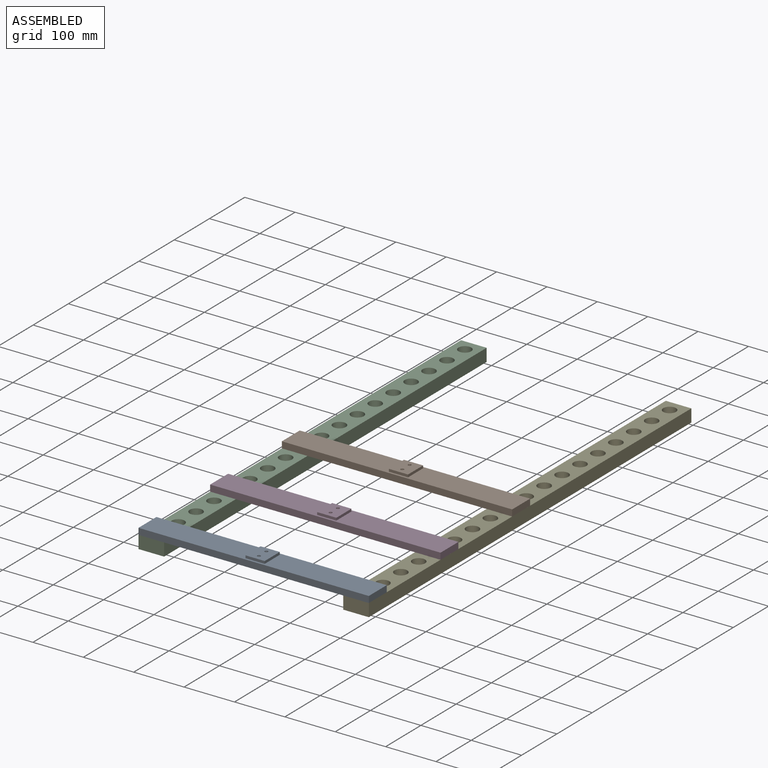
[diagram: assembled view]
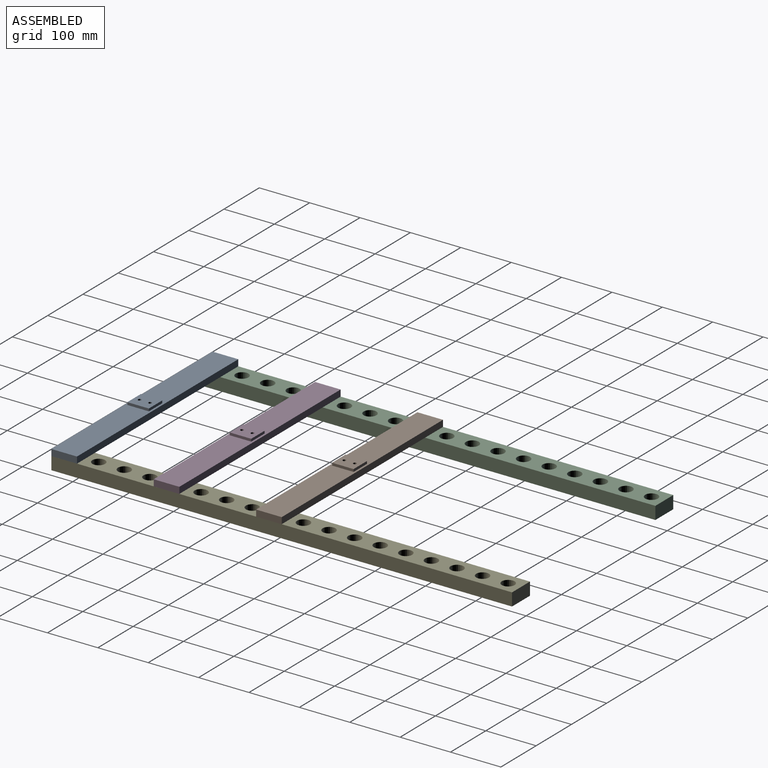
[diagram: assembled view, second angle]
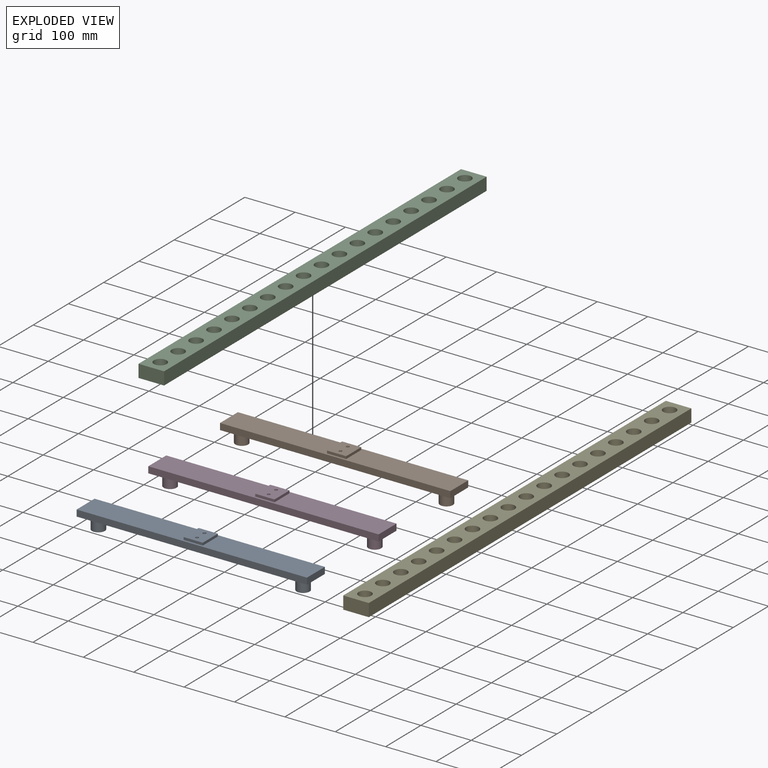
[diagram: exploded view]
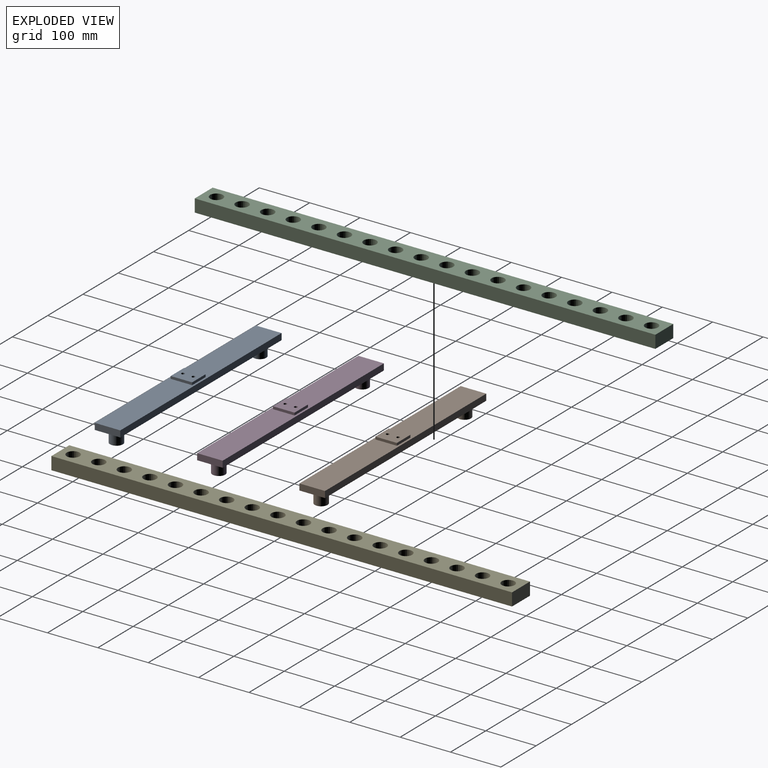
[diagram: exploded view, second angle]
ASSEMBLY  parts=5 mates=8
PART A: 19 faces, bbox 457.2x50.8x43.2 mm
  f0: plane 457.2x50.8mm, normal (0,0,-1), area 21600mm2, adj f1,f2,f3,f4,f10,f11,f12,f14
  f1: plane 50.8x12.7mm, normal (1,0,0), area 645.2mm2, adj f0,f2,f4,f5
  f2: plane 457.2x12.7mm, normal (0,1,0), area 5806.4mm2, adj f0,f1,f3,f5
  f3: plane 50.8x12.7mm, normal (-1,0,0), area 645.2mm2, adj f0,f2,f4,f5
  f4: plane 457.2x12.7mm, normal (0,-1,0), area 5806.4mm2, adj f0,f1,f3,f5
  f5: plane 457.2x50.8mm, normal (0,0,1), area 22212.3mm2, adj f1,f2,f3,f4,f6,f8
  f6: cylinder r=12.7mm len=25.4mm, axis (0,0,-1), area 2026.8mm2, adj f5,f7
  f7: plane 25.4x25.4mm, normal (0,0,1), area 506.7mm2, adj f6
  f8: cylinder r=12.7mm len=25.4mm, axis (0,0,-1), area 2026.8mm2, adj f5,f9
  f9: plane 25.4x25.4mm, normal (0,0,1), area 506.7mm2, adj f8
  f10: plane 42.67x5.08mm, normal (1,0,0), area 216.8mm2, adj f0,f11,f14,f16
  f11: plane 38.1x5.08mm, normal (0,-1,0), area 193.5mm2, adj f0,f10,f12,f16
  f12: plane 42.67x5.08mm, normal (-1,0,0), area 216.8mm2, adj f0,f11,f14,f16
  f13: cylinder r=3.17mm len=6.35mm, axis (0,0,1), area 101.3mm2, adj f16,f17
  f14: plane 38.1x5.08mm, normal (0,1,0), area 193.5mm2, adj f0,f10,f12,f16
  f15: cylinder r=3.17mm len=6.35mm, axis (0,0,1), area 101.3mm2, adj f16,f18
  f16: plane 42.67x38.1mm, normal (0,0,-1), area 1562.5mm2, adj f10,f11,f12,f13,f14,f15
  f17: plane 6.35x6.35mm, normal (0,0,-1), area 31.7mm2, adj f13
  f18: plane 6.35x6.35mm, normal (0,0,-1), area 31.7mm2, adj f15
PART B: same geometry as A
PART C: 24 faces, bbox 50.8x914.4x25.4 mm
  f0: plane 50.8x25.4mm, normal (0,-1,0), area 1290.3mm2, adj f1,f21,f22,f23
  f1: plane 914.4x25.4mm, normal (1,0,0), area 23225.8mm2, adj f0,f2,f22,f23
  f2: plane 50.8x25.4mm, normal (0,1,0), area 1290.3mm2, adj f1,f21,f22,f23
  f3: cylinder r=12.7mm len=25.4mm, axis (0,0,-1), area 2026.8mm2, adj f22,f23
  f4: cylinder r=12.7mm len=25.4mm, axis (0,0,-1), area 2026.8mm2, adj f22,f23
  f5: cylinder r=12.7mm len=25.4mm, axis (0,0,-1), area 2026.8mm2, adj f22,f23
  f6: cylinder r=12.7mm len=25.4mm, axis (0,0,-1), area 2026.8mm2, adj f22,f23
  f7: cylinder r=12.7mm len=25.4mm, axis (0,0,-1), area 2026.8mm2, adj f22,f23
  f8: cylinder r=12.7mm len=25.4mm, axis (0,0,-1), area 2026.8mm2, adj f22,f23
  f9: cylinder r=12.7mm len=25.4mm, axis (0,0,-1), area 2026.8mm2, adj f22,f23
  f10: cylinder r=12.7mm len=25.4mm, axis (0,0,-1), area 2026.8mm2, adj f22,f23
  f11: cylinder r=12.7mm len=25.4mm, axis (0,0,-1), area 2026.8mm2, adj f22,f23
  f12: cylinder r=12.7mm len=25.4mm, axis (0,0,-1), area 2026.8mm2, adj f22,f23
  f13: cylinder r=12.7mm len=25.4mm, axis (0,0,-1), area 2026.8mm2, adj f22,f23
  f14: cylinder r=12.7mm len=25.4mm, axis (0,0,-1), area 2026.8mm2, adj f22,f23
  f15: cylinder r=12.7mm len=25.4mm, axis (0,0,-1), area 2026.8mm2, adj f22,f23
  f16: cylinder r=12.7mm len=25.4mm, axis (0,0,-1), area 2026.8mm2, adj f22,f23
  f17: cylinder r=12.7mm len=25.4mm, axis (0,0,-1), area 2026.8mm2, adj f22,f23
  f18: cylinder r=12.7mm len=25.4mm, axis (0,0,-1), area 2026.8mm2, adj f22,f23
  f19: cylinder r=12.7mm len=25.4mm, axis (0,0,-1), area 2026.8mm2, adj f22,f23
  f20: cylinder r=12.7mm len=25.4mm, axis (0,0,-1), area 2026.8mm2, adj f22,f23
  f21: plane 914.4x25.4mm, normal (-1,0,0), area 23225.8mm2, adj f0,f2,f22,f23
  f22: plane 914.4x50.8mm, normal (0,0,1), area 37330.8mm2, adj f0,f1,f2,f3,f4,f5,f6,f7
  f23: plane 914.4x50.8mm, normal (0,0,-1), area 37330.8mm2, adj f0,f1,f2,f3,f4,f5,f6,f7
PART D: same geometry as A
PART E: same geometry as C
PLACE A rot(axis=(1,0,0),180deg) t=(612.51,222.74,-151.49)mm
PLACE B rot(axis=(1,0,0),180deg) t=(612.51,629.14,-151.49)mm
PLACE C t=(104.51,65.33,-189.59)mm
PLACE D rot(axis=(1,0,0),180deg) t=(612.51,425.94,-151.49)mm
PLACE E t=(510.91,65.33,-189.59)mm
MATE parallel B.f1 <-> E.f1  axis (1,0,0) through (510.91,497.13,-157.84)mm
MATE parallel D.f1 <-> E.f1  axis (1,0,0) through (510.91,293.93,-157.84)mm
MATE revolute D.f6 <-> E.f7  axis (0,0,1) through (485.51,293.93,-164.19)mm
MATE revolute A.f8 <-> C.f3  axis (0,0,1) through (79.11,90.73,-164.19)mm
MATE revolute B.f6 <-> E.f11  axis (0,0,1) through (485.51,497.13,-164.19)mm
MATE parallel A.f1 <-> E.f1  axis (1,0,0) through (510.91,90.73,-157.84)mm
MATE parallel A.f3 <-> C.f21  axis (-1,0,0) through (53.71,90.73,-157.84)mm
MATE revolute A.f6 <-> E.f3  axis (0,0,1) through (485.51,90.73,-164.19)mm
